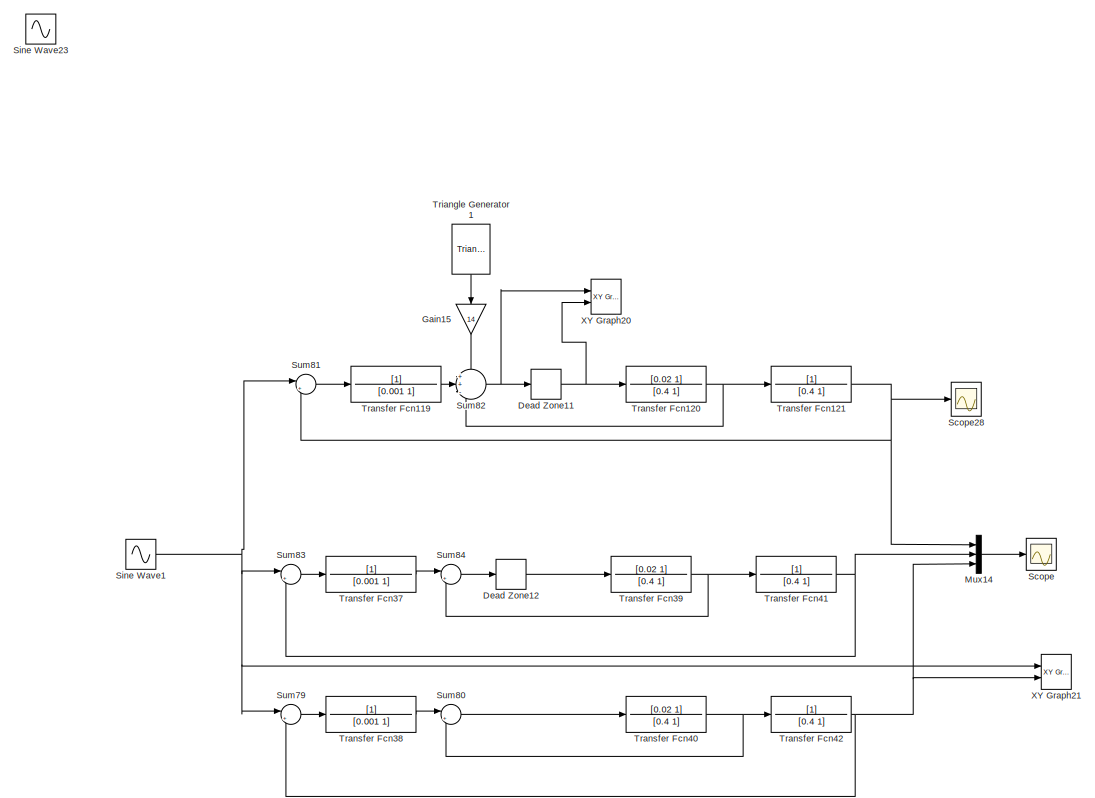
[diagram: root canvas - part 1/9, top left region]
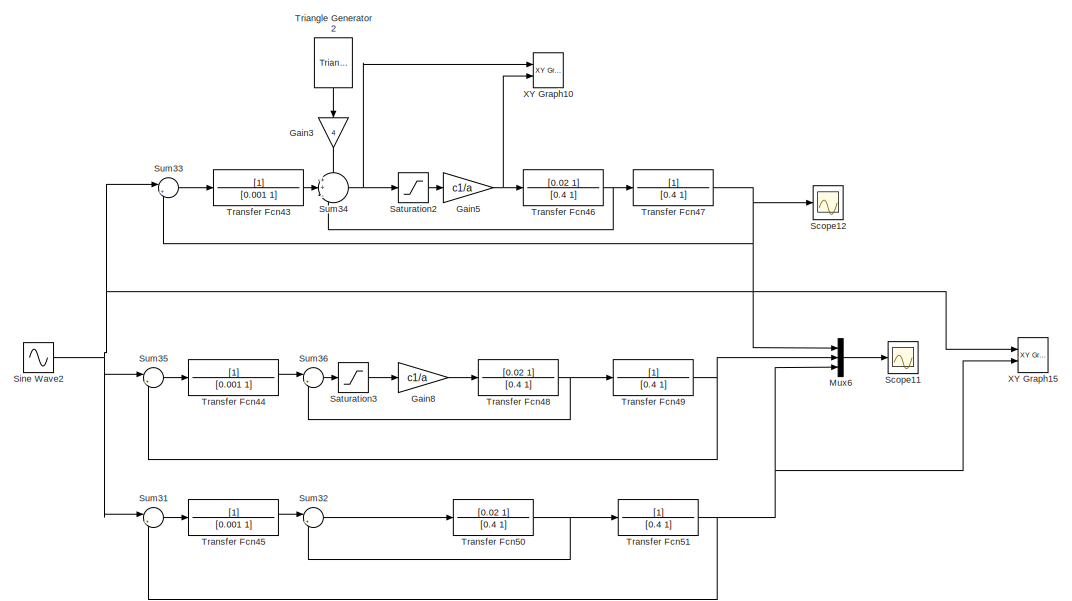
[diagram: root canvas - part 2/9, top center region]
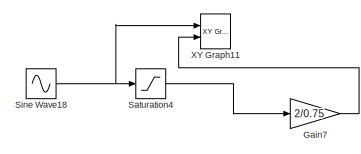
[diagram: root canvas - part 3/9, top right region]
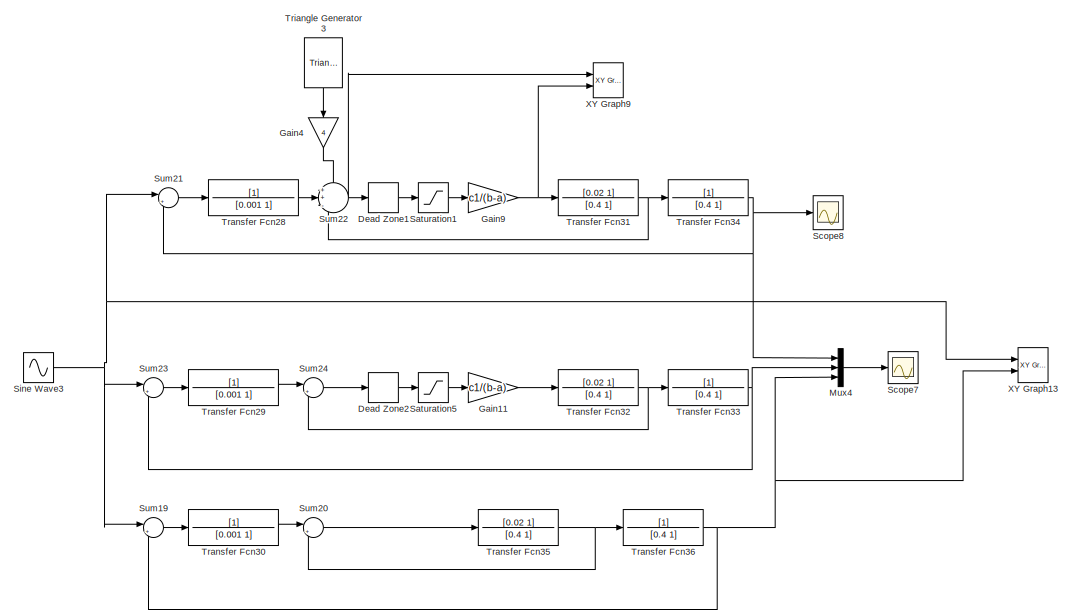
[diagram: root canvas - part 4/9, central region]
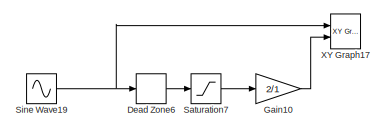
[diagram: root canvas - part 5/9, middle right region]
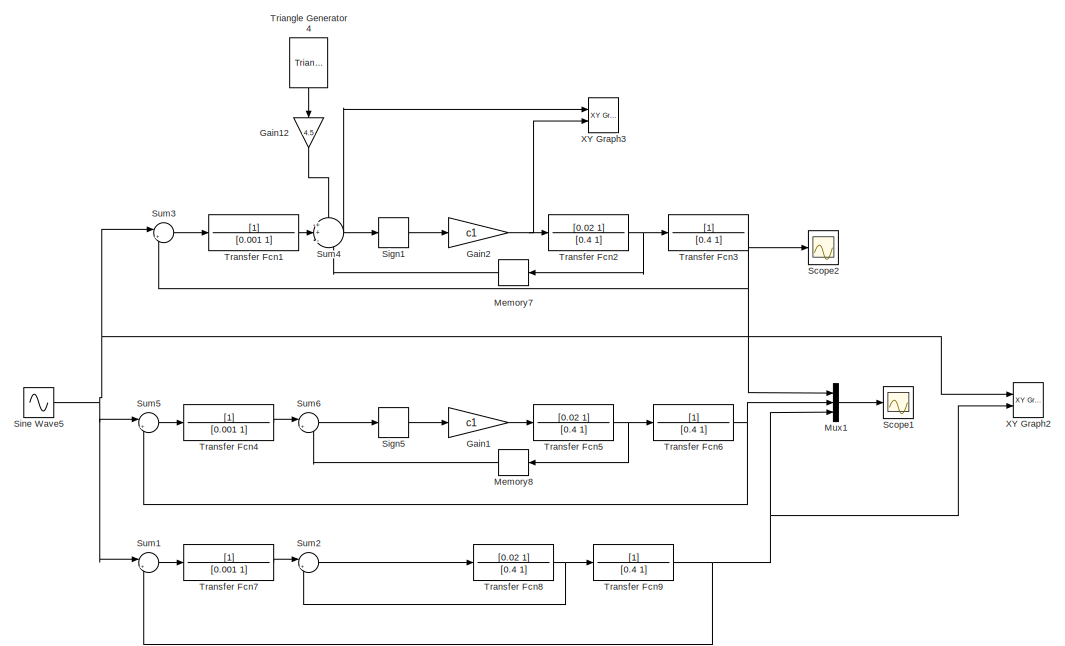
[diagram: root canvas - part 6/9, central region]
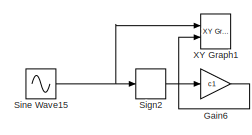
[diagram: root canvas - part 7/9, middle right region]
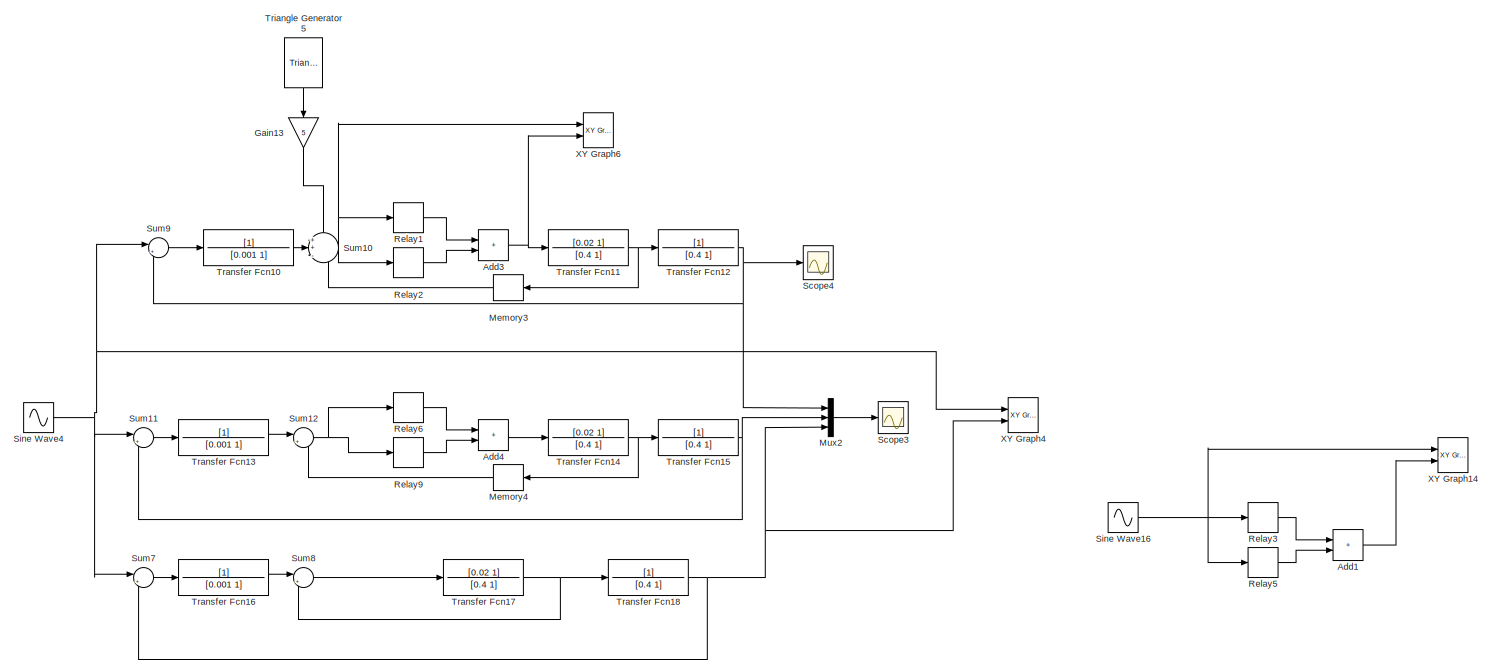
[diagram: root canvas - part 8/9, full width, bottom band]
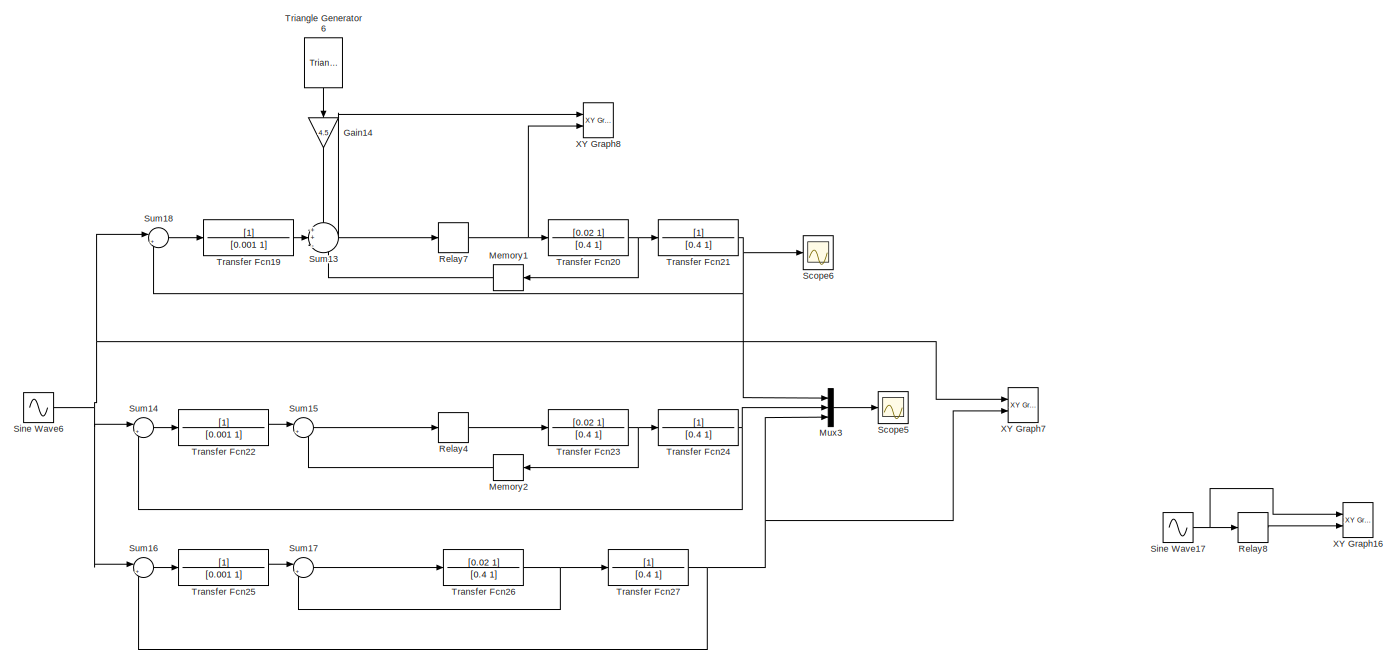
[diagram: root canvas - part 9/9, bottom center region]
MODEL slx_cbd63c91ff4a
KIND model
CONFIG AbsTol = auto
CONFIG EnableMultiTasking = off
CONFIG FixedStep = 1e-4
CONFIG MaxStep = auto
CONFIG MinStep = auto
CONFIG RelTol = 1e-3
CONFIG SampleTimeConstraint = Unconstrained
CONFIG SolverName = VariableStepAuto
CONFIG StartTime = 0.0
CONFIG StopTime = 5
BLOCK [Sum] Add1
  Commented = on
  IconShape = rectangular
  Ports = [2, 1]
BLOCK [Sum] Add3
  IconShape = rectangular
  Ports = [2, 1]
BLOCK [Sum] Add4
  IconShape = rectangular
  Ports = [2, 1]
BLOCK [DeadZone] Dead Zone1
  Commented = on
  LowerValue = -a
  UpperValue = a
BLOCK [DeadZone] Dead Zone11
  Commented = on
  LowerValue = -a
  UpperValue = a
BLOCK [DeadZone] Dead Zone12
  Commented = on
  LowerValue = -a
  UpperValue = a
BLOCK [DeadZone] Dead Zone2
  Commented = on
  LowerValue = -a
  UpperValue = a
BLOCK [DeadZone] Dead Zone6
  Commented = on
  LowerValue = -1
  UpperValue = 1
BLOCK [Gain] Gain1
  Commented = on
  Gain = c1
BLOCK [Gain] Gain10
  Commented = on
  Gain = 2/1
BLOCK [Gain] Gain11
  Commented = on
  Gain = c1/(b-a)
BLOCK [Gain] Gain12
  Commented = on
  Gain = 4.5
  NameLocation = left
BLOCK [Gain] Gain13
  Gain = 5
  NameLocation = left
BLOCK [Gain] Gain14
  Commented = on
  Gain = 4.5
  NameLocation = left
BLOCK [Gain] Gain15
  Commented = on
  Gain = 14
  NameLocation = left
BLOCK [Gain] Gain2
  Commented = on
  Gain = c1
BLOCK [Gain] Gain3
  Commented = on
  Gain = 4
  NameLocation = left
BLOCK [Gain] Gain4
  Commented = on
  Gain = 4
  NameLocation = left
BLOCK [Gain] Gain5
  Commented = on
  Gain = c1/a
BLOCK [Gain] Gain6
  Commented = on
  Gain = c1
BLOCK [Gain] Gain7
  Commented = on
  Gain = 2/0.75
BLOCK [Gain] Gain8
  Commented = on
  Gain = c1/a
BLOCK [Gain] Gain9
  Commented = on
  Gain = c1/(b-a)
BLOCK [Memory] Memory1
  Commented = on
  NameLocation = top
BLOCK [Memory] Memory2
  Commented = on
  NameLocation = top
BLOCK [Memory] Memory3
  NameLocation = top
BLOCK [Memory] Memory4
  NameLocation = top
BLOCK [Memory] Memory7
  Commented = on
  NameLocation = top
BLOCK [Memory] Memory8
  Commented = on
  NameLocation = top
BLOCK [Mux] Mux1
  Commented = on
  DisplayOption = bar
  Inputs = 3
  Ports = [3, 1]
BLOCK [Mux] Mux14
  Commented = on
  DisplayOption = bar
  Inputs = 3
  Ports = [3, 1]
BLOCK [Mux] Mux2
  DisplayOption = bar
  Inputs = 3
  Ports = [3, 1]
BLOCK [Mux] Mux3
  Commented = on
  DisplayOption = bar
  Inputs = 3
  Ports = [3, 1]
BLOCK [Mux] Mux4
  Commented = on
  DisplayOption = bar
  Inputs = 3
  Ports = [3, 1]
BLOCK [Mux] Mux6
  Commented = on
  DisplayOption = bar
  Inputs = 3
  Ports = [3, 1]
BLOCK [Relay] Relay1
  OffSwitchValue = a
  OnOutputValue = c1
  OnSwitchValue = a
BLOCK [Relay] Relay2
  OffOutputValue = -c1
  OffSwitchValue = -a
  OnOutputValue = 0
  OnSwitchValue = -a
BLOCK [Relay] Relay3
  Commented = on
  OffSwitchValue = a
  OnOutputValue = c1
  OnSwitchValue = a
BLOCK [Relay] Relay4
  Commented = on
  OffOutputValue = -c1
  OffSwitchValue = -a
  OnOutputValue = c1
  OnSwitchValue = a
BLOCK [Relay] Relay5
  Commented = on
  OffOutputValue = -c1
  OffSwitchValue = -a
  OnOutputValue = 0
  OnSwitchValue = -a
BLOCK [Relay] Relay6
  OffSwitchValue = a
  OnOutputValue = c1
  OnSwitchValue = a
BLOCK [Relay] Relay7
  Commented = on
  OffOutputValue = -c1
  OffSwitchValue = -a
  OnOutputValue = c1
  OnSwitchValue = a
BLOCK [Relay] Relay8
  Commented = on
  OffOutputValue = -c1
  OffSwitchValue = -a
  OnOutputValue = c1
  OnSwitchValue = a
BLOCK [Relay] Relay9
  OffOutputValue = -c1
  OffSwitchValue = -a
  OnOutputValue = 0
  OnSwitchValue = -a
BLOCK [Saturate] Saturation1
  Commented = on
  LowerLimit = -(b-a)
  UpperLimit = b-a
BLOCK [Saturate] Saturation2
  Commented = on
  LowerLimit = -a
  UpperLimit = a
BLOCK [Saturate] Saturation3
  Commented = on
  LowerLimit = -a
  UpperLimit = a
BLOCK [Saturate] Saturation4
  Commented = on
  LowerLimit = -0.75
  UpperLimit = 0.75
BLOCK [Saturate] Saturation5
  Commented = on
  LowerLimit = -(b-a)
  UpperLimit = b-a
BLOCK [Saturate] Saturation7
  Commented = on
  LowerLimit = -1
  UpperLimit = 1
BLOCK [Scope] Scope
  Commented = on
  Floating = off
  NumInputPorts = 1
  Ports = [1]
  ScopeSpecificationString = Simulink.scopes.TimeScopeBlockCfg('CurrentConfiguration', extmgr.ConfigurationSet(extmgr.Configuration('Core','General UI',true,'FigureColor',[1 1 1]),extmgr.Configuration('Core','Source UI',true),extmgr.Configuration('Sources','WiredSimulink',true,'DataLoggingVariableName','ScopeData1'),extmgr.Configuration('Visuals','Time Domain',true,'SerializedDisplays',{struct('MinYLimReal','-0.0117','MaxYLim...<+1921ch>
BLOCK [Scope] Scope1
  Commented = on
  Floating = off
  NumInputPorts = 1
  Ports = [1]
  ScopeSpecificationString = Simulink.scopes.TimeScopeBlockCfg('CurrentConfiguration', extmgr.ConfigurationSet(extmgr.Configuration('Core','General UI',true,'FigureColor',[1 1 1]),extmgr.Configuration('Core','Source UI',true),extmgr.Configuration('Sources','WiredSimulink',true,'DataLoggingVariableName','ScopeData5'),extmgr.Configuration('Visuals','Time Domain',true,'SerializedDisplays',{struct('MinYLimReal','-0.41903','MaxYLi...<+1925ch>
BLOCK [Scope] Scope11
  Commented = on
  Floating = off
  NumInputPorts = 1
  Ports = [1]
  ScopeSpecificationString = Simulink.scopes.TimeScopeBlockCfg('CurrentConfiguration', extmgr.ConfigurationSet(extmgr.Configuration('Core','General UI',true,'FigureColor',[1 1 1]),extmgr.Configuration('Core','Source UI',true),extmgr.Configuration('Sources','WiredSimulink',true,'DataLoggingVariableName','ScopeData1'),extmgr.Configuration('Visuals','Time Domain',true,'SerializedDisplays',{struct('MinYLimReal','-0.41443','MaxYLi...<+1927ch>
BLOCK [Scope] Scope12
  Commented = on
  Floating = off
  NumInputPorts = 1
  Ports = [1]
  ScopeSpecificationString = Simulink.scopes.TimeScopeBlockCfg('CurrentConfiguration', extmgr.ConfigurationSet(extmgr.Configuration('Core','General UI',true,'FigureColor',[1 1 1]),extmgr.Configuration('Core','Source UI',true),extmgr.Configuration('Sources','WiredSimulink',true,'DataLoggingVariableName','ScopeData2'),extmgr.Configuration('Visuals','Time Domain',true,'SerializedDisplays',{struct('MinYLimReal','-0.23624','MaxYLi...<+1791ch>
BLOCK [Scope] Scope2
  Commented = on
  Floating = off
  NumInputPorts = 1
  Ports = [1]
  ScopeSpecificationString = Simulink.scopes.TimeScopeBlockCfg('CurrentConfiguration', extmgr.ConfigurationSet(extmgr.Configuration('Core','General UI',true,'FigureColor',[1 1 1]),extmgr.Configuration('Core','Source UI',true),extmgr.Configuration('Sources','WiredSimulink',true,'DataLoggingVariableName','ScopeData6'),extmgr.Configuration('Visuals','Time Domain',true,'SerializedDisplays',{struct('MinYLimReal','-0.02192','MaxYLi...<+1795ch>
BLOCK [Scope] Scope28
  Commented = on
  Floating = off
  NumInputPorts = 1
  Ports = [1]
  ScopeSpecificationString = Simulink.scopes.TimeScopeBlockCfg('CurrentConfiguration', extmgr.ConfigurationSet(extmgr.Configuration('Core','General UI',true,'FigureColor',[1 1 1]),extmgr.Configuration('Core','Source UI',true),extmgr.Configuration('Sources','WiredSimulink',true,'DataLoggingVariableName','ScopeData2'),extmgr.Configuration('Visuals','Time Domain',true,'SerializedDisplays',{struct('MinYLimReal','-0.02192','MaxYLi...<+1795ch>
BLOCK [Scope] Scope3
  Floating = off
  NumInputPorts = 1
  Ports = [1]
  ScopeSpecificationString = Simulink.scopes.TimeScopeBlockCfg('CurrentConfiguration', extmgr.ConfigurationSet(extmgr.Configuration('Core','General UI',true,'FigureColor',[1 1 1]),extmgr.Configuration('Core','Source UI',true),extmgr.Configuration('Sources','WiredSimulink',true,'DataLoggingVariableName','ScopeData7'),extmgr.Configuration('Visuals','Time Domain',true,'SerializedDisplays',{struct('MinYLimReal','-0.97299','MaxYLi...<+1970ch>
BLOCK [Scope] Scope4
  Floating = off
  NumInputPorts = 1
  Ports = [1]
  ScopeSpecificationString = Simulink.scopes.TimeScopeBlockCfg('CurrentConfiguration', extmgr.ConfigurationSet(extmgr.Configuration('Core','General UI',true,'FigureColor',[1 1 1]),extmgr.Configuration('Core','Source UI',true),extmgr.Configuration('Sources','WiredSimulink',true,'DataLoggingVariableName','ScopeData8'),extmgr.Configuration('Visuals','Time Domain',true,'SerializedDisplays',{struct('MinYLimReal','-0.19117','MaxYLi...<+1795ch>
BLOCK [Scope] Scope5
  Commented = on
  Floating = off
  NumInputPorts = 1
  Ports = [1]
  ScopeSpecificationString = Simulink.scopes.TimeScopeBlockCfg('CurrentConfiguration', extmgr.ConfigurationSet(extmgr.Configuration('Core','General UI',true,'FigureColor',[1 1 1]),extmgr.Configuration('Core','Source UI',true),extmgr.Configuration('Sources','WiredSimulink',true,'DataLoggingVariableName','ScopeData9'),extmgr.Configuration('Visuals','Time Domain',true,'SerializedDisplays',{struct('MinYLimReal','-0.4166','MaxYLim...<+1942ch>
BLOCK [Scope] Scope6
  Commented = on
  Floating = off
  NumInputPorts = 1
  Ports = [1]
  ScopeSpecificationString = Simulink.scopes.TimeScopeBlockCfg('CurrentConfiguration', extmgr.ConfigurationSet(extmgr.Configuration('Core','General UI',true,'FigureColor',[1 1 1]),extmgr.Configuration('Core','Source UI',true),extmgr.Configuration('Sources','WiredSimulink',true,'DataLoggingVariableName','ScopeData10'),extmgr.Configuration('Visuals','Time Domain',true,'SerializedDisplays',{struct('MinYLimReal','-0.02192','MaxYL...<+1796ch>
BLOCK [Scope] Scope7
  Commented = on
  Floating = off
  NumInputPorts = 1
  Ports = [1]
  ScopeSpecificationString = Simulink.scopes.TimeScopeBlockCfg('CurrentConfiguration', extmgr.ConfigurationSet(extmgr.Configuration('Core','General UI',true,'FigureColor',[1 1 1]),extmgr.Configuration('Core','Source UI',true),extmgr.Configuration('Sources','WiredSimulink',true,'DataLoggingVariableName','ScopeData3'),extmgr.Configuration('Visuals','Time Domain',true,'SerializedDisplays',{struct('MinYLimReal','-0.38026','MaxYLi...<+1923ch>
BLOCK [Scope] Scope8
  Commented = on
  Floating = off
  NumInputPorts = 1
  Ports = [1]
  ScopeSpecificationString = Simulink.scopes.TimeScopeBlockCfg('CurrentConfiguration', extmgr.ConfigurationSet(extmgr.Configuration('Core','General UI',true,'FigureColor',[1 1 1]),extmgr.Configuration('Core','Source UI',true),extmgr.Configuration('Sources','WiredSimulink',true,'DataLoggingVariableName','ScopeData4'),extmgr.Configuration('Visuals','Time Domain',true,'SerializedDisplays',{struct('MinYLimReal','-0.2347','MaxYLim...<+1793ch>
BLOCK [Signum] Sign1
  Commented = on
BLOCK [Signum] Sign2
  Commented = on
BLOCK [Signum] Sign5
  Commented = on
BLOCK [Sin] Sine Wave1
  Amplitude = U
  Commented = on
  Frequency = w
  Ports = [0, 1]
  SampleTime = 0
BLOCK [Sin] Sine Wave15
  Amplitude = 3
  Commented = on
  Frequency = 10
  Ports = [0, 1]
  SampleTime = 0
BLOCK [Sin] Sine Wave16
  Amplitude = 3
  Commented = on
  Phase = 90
  Ports = [0, 1]
  SampleTime = 0
BLOCK [Sin] Sine Wave17
  Amplitude = 10
  Commented = on
  Ports = [0, 1]
  SampleTime = 0
BLOCK [Sin] Sine Wave18
  Amplitude = 3
  Commented = on
  Ports = [0, 1]
  SampleTime = 0
BLOCK [Sin] Sine Wave19
  Amplitude = 5
  Commented = on
  Ports = [0, 1]
  SampleTime = 0
BLOCK [Sin] Sine Wave2
  Amplitude = U
  Commented = on
  Frequency = w
  Ports = [0, 1]
  SampleTime = 0
BLOCK [Sin] Sine Wave23
  Amplitude = 6
  Commented = on
  Frequency = 1000
  NameLocation = left
  Ports = [0, 1]
  SampleTime = 0
BLOCK [Sin] Sine Wave3
  Amplitude = U
  Commented = on
  Frequency = w
  Ports = [0, 1]
  SampleTime = 0
BLOCK [Sin] Sine Wave4
  Amplitude = U
  Frequency = w
  Ports = [0, 1]
  SampleTime = 0
BLOCK [Sin] Sine Wave5
  Amplitude = U
  Commented = on
  Frequency = w
  Ports = [0, 1]
  SampleTime = 0
BLOCK [Sin] Sine Wave6
  Amplitude = U
  Commented = on
  Frequency = w
  Ports = [0, 1]
  SampleTime = 0
BLOCK [Sum] Sum1
  Commented = on
  Inputs = |+-
  Ports = [2, 1]
BLOCK [Sum] Sum10
  Inputs = ++-
  Ports = [3, 1]
BLOCK [Sum] Sum11
  Inputs = |+-
  Ports = [2, 1]
BLOCK [Sum] Sum12
  Inputs = |+-
  Ports = [2, 1]
BLOCK [Sum] Sum13
  Commented = on
  Inputs = ++-
  Ports = [3, 1]
BLOCK [Sum] Sum14
  Commented = on
  Inputs = |+-
  Ports = [2, 1]
BLOCK [Sum] Sum15
  Commented = on
  Inputs = |+-
  Ports = [2, 1]
BLOCK [Sum] Sum16
  Commented = on
  Inputs = |+-
  Ports = [2, 1]
BLOCK [Sum] Sum17
  Commented = on
  Inputs = |+-
  Ports = [2, 1]
BLOCK [Sum] Sum18
  Commented = on
  Inputs = |+-
  Ports = [2, 1]
BLOCK [Sum] Sum19
  Commented = on
  Inputs = |+-
  Ports = [2, 1]
BLOCK [Sum] Sum2
  Commented = on
  Inputs = |+-
  Ports = [2, 1]
BLOCK [Sum] Sum20
  Commented = on
  Inputs = |+-
  Ports = [2, 1]
BLOCK [Sum] Sum21
  Commented = on
  Inputs = |+-
  Ports = [2, 1]
BLOCK [Sum] Sum22
  Commented = on
  Inputs = ++-
  Ports = [3, 1]
BLOCK [Sum] Sum23
  Commented = on
  Inputs = |+-
  Ports = [2, 1]
BLOCK [Sum] Sum24
  Commented = on
  Inputs = |+-
  Ports = [2, 1]
BLOCK [Sum] Sum3
  Commented = on
  Inputs = |+-
  Ports = [2, 1]
BLOCK [Sum] Sum31
  Commented = on
  Inputs = |+-
  Ports = [2, 1]
BLOCK [Sum] Sum32
  Commented = on
  Inputs = |+-
  Ports = [2, 1]
BLOCK [Sum] Sum33
  Commented = on
  Inputs = |+-
  Ports = [2, 1]
BLOCK [Sum] Sum34
  Commented = on
  Inputs = ++-
  Ports = [3, 1]
BLOCK [Sum] Sum35
  Commented = on
  Inputs = |+-
  Ports = [2, 1]
BLOCK [Sum] Sum36
  Commented = on
  Inputs = |+-
  Ports = [2, 1]
BLOCK [Sum] Sum4
  Commented = on
  Inputs = ++-
  Ports = [3, 1]
BLOCK [Sum] Sum5
  Commented = on
  Inputs = |+-
  Ports = [2, 1]
BLOCK [Sum] Sum6
  Commented = on
  Inputs = |+-
  Ports = [2, 1]
BLOCK [Sum] Sum7
  Inputs = |+-
  Ports = [2, 1]
BLOCK [Sum] Sum79
  Commented = on
  Inputs = |+-
  Ports = [2, 1]
BLOCK [Sum] Sum8
  Inputs = |+-
  Ports = [2, 1]
BLOCK [Sum] Sum80
  Commented = on
  Inputs = |+-
  Ports = [2, 1]
BLOCK [Sum] Sum81
  Commented = on
  Inputs = |+-
  Ports = [2, 1]
BLOCK [Sum] Sum82
  Commented = on
  Inputs = ++-
  Ports = [3, 1]
BLOCK [Sum] Sum83
  Commented = on
  Inputs = |+-
  Ports = [2, 1]
BLOCK [Sum] Sum84
  Commented = on
  Inputs = |+-
  Ports = [2, 1]
BLOCK [Sum] Sum9
  Inputs = |+-
  Ports = [2, 1]
BLOCK [TransferFcn] Transfer Fcn1
  Commented = on
  Denominator = [0.001 1]
BLOCK [TransferFcn] Transfer Fcn10
  Denominator = [0.001 1]
BLOCK [TransferFcn] Transfer Fcn11
  Denominator = [0.4 1]
  Numerator = [0.02 1]
BLOCK [TransferFcn] Transfer Fcn119
  Commented = on
  Denominator = [0.001 1]
BLOCK [TransferFcn] Transfer Fcn12
  Denominator = [0.4 1]
BLOCK [TransferFcn] Transfer Fcn120
  Commented = on
  Denominator = [0.4 1]
  Numerator = [0.02 1]
BLOCK [TransferFcn] Transfer Fcn121
  Commented = on
  Denominator = [0.4 1]
BLOCK [TransferFcn] Transfer Fcn13
  Denominator = [0.001 1]
BLOCK [TransferFcn] Transfer Fcn14
  Denominator = [0.4 1]
  Numerator = [0.02 1]
BLOCK [TransferFcn] Transfer Fcn15
  Denominator = [0.4 1]
BLOCK [TransferFcn] Transfer Fcn16
  Denominator = [0.001 1]
BLOCK [TransferFcn] Transfer Fcn17
  Denominator = [0.4 1]
  Numerator = [0.02 1]
BLOCK [TransferFcn] Transfer Fcn18
  Denominator = [0.4 1]
BLOCK [TransferFcn] Transfer Fcn19
  Commented = on
  Denominator = [0.001 1]
BLOCK [TransferFcn] Transfer Fcn2
  Commented = on
  Denominator = [0.4 1]
  Numerator = [0.02 1]
BLOCK [TransferFcn] Transfer Fcn20
  Commented = on
  Denominator = [0.4 1]
  Numerator = [0.02 1]
BLOCK [TransferFcn] Transfer Fcn21
  Commented = on
  Denominator = [0.4 1]
BLOCK [TransferFcn] Transfer Fcn22
  Commented = on
  Denominator = [0.001 1]
BLOCK [TransferFcn] Transfer Fcn23
  Commented = on
  Denominator = [0.4 1]
  Numerator = [0.02 1]
BLOCK [TransferFcn] Transfer Fcn24
  Commented = on
  Denominator = [0.4 1]
BLOCK [TransferFcn] Transfer Fcn25
  Commented = on
  Denominator = [0.001 1]
BLOCK [TransferFcn] Transfer Fcn26
  Commented = on
  Denominator = [0.4 1]
  Numerator = [0.02 1]
BLOCK [TransferFcn] Transfer Fcn27
  Commented = on
  Denominator = [0.4 1]
BLOCK [TransferFcn] Transfer Fcn28
  Commented = on
  Denominator = [0.001 1]
BLOCK [TransferFcn] Transfer Fcn29
  Commented = on
  Denominator = [0.001 1]
BLOCK [TransferFcn] Transfer Fcn3
  Commented = on
  Denominator = [0.4 1]
  NameLocation = left
BLOCK [TransferFcn] Transfer Fcn30
  Commented = on
  Denominator = [0.001 1]
BLOCK [TransferFcn] Transfer Fcn31
  Commented = on
  Denominator = [0.4 1]
  Numerator = [0.02 1]
BLOCK [TransferFcn] Transfer Fcn32
  Commented = on
  Denominator = [0.4 1]
  Numerator = [0.02 1]
BLOCK [TransferFcn] Transfer Fcn33
  Commented = on
  Denominator = [0.4 1]
  NameLocation = left
BLOCK [TransferFcn] Transfer Fcn34
  Commented = on
  Denominator = [0.4 1]
  NameLocation = left
BLOCK [TransferFcn] Transfer Fcn35
  Commented = on
  Denominator = [0.4 1]
  Numerator = [0.02 1]
BLOCK [TransferFcn] Transfer Fcn36
  Commented = on
  Denominator = [0.4 1]
  NameLocation = left
BLOCK [TransferFcn] Transfer Fcn37
  Commented = on
  Denominator = [0.001 1]
BLOCK [TransferFcn] Transfer Fcn38
  Commented = on
  Denominator = [0.001 1]
BLOCK [TransferFcn] Transfer Fcn39
  Commented = on
  Denominator = [0.4 1]
  Numerator = [0.02 1]
BLOCK [TransferFcn] Transfer Fcn4
  Commented = on
  Denominator = [0.001 1]
BLOCK [TransferFcn] Transfer Fcn40
  Commented = on
  Denominator = [0.4 1]
  Numerator = [0.02 1]
BLOCK [TransferFcn] Transfer Fcn41
  Commented = on
  Denominator = [0.4 1]
BLOCK [TransferFcn] Transfer Fcn42
  Commented = on
  Denominator = [0.4 1]
BLOCK [TransferFcn] Transfer Fcn43
  Commented = on
  Denominator = [0.001 1]
BLOCK [TransferFcn] Transfer Fcn44
  Commented = on
  Denominator = [0.001 1]
BLOCK [TransferFcn] Transfer Fcn45
  Commented = on
  Denominator = [0.001 1]
BLOCK [TransferFcn] Transfer Fcn46
  Commented = on
  Denominator = [0.4 1]
  Numerator = [0.02 1]
BLOCK [TransferFcn] Transfer Fcn47
  Commented = on
  Denominator = [0.4 1]
BLOCK [TransferFcn] Transfer Fcn48
  Commented = on
  Denominator = [0.4 1]
  Numerator = [0.02 1]
BLOCK [TransferFcn] Transfer Fcn49
  Commented = on
  Denominator = [0.4 1]
  NameLocation = left
BLOCK [TransferFcn] Transfer Fcn5
  Commented = on
  Denominator = [0.4 1]
  Numerator = [0.02 1]
BLOCK [TransferFcn] Transfer Fcn50
  Commented = on
  Denominator = [0.4 1]
  Numerator = [0.02 1]
BLOCK [TransferFcn] Transfer Fcn51
  Commented = on
  Denominator = [0.4 1]
  NameLocation = left
BLOCK [TransferFcn] Transfer Fcn6
  Commented = on
  Denominator = [0.4 1]
  NameLocation = left
BLOCK [TransferFcn] Transfer Fcn7
  Commented = on
  Denominator = [0.001 1]
BLOCK [TransferFcn] Transfer Fcn8
  Commented = on
  Denominator = [0.4 1]
  Numerator = [0.02 1]
BLOCK [TransferFcn] Transfer Fcn9
  Commented = on
  Denominator = [0.4 1]
  NameLocation = left
BLOCK [Reference] Triangle Generator1  REF=powerlib_meascontrol/Pulse & Signal
Generators/Triangle
Generator
  Commented = on
  NameLocation = left
  Ports = [0, 1]
  SourceBlock = powerlib_meascontrol/Pulse & Signal\nGenerators/Triangle\nGenerator
  SourceProductBaseCode = PS
  SourceType = Triangle Generator
BLOCK [Reference] Triangle Generator2  REF=powerlib_meascontrol/Pulse & Signal
Generators/Triangle
Generator
  Commented = on
  NameLocation = left
  Ports = [0, 1]
  SourceBlock = powerlib_meascontrol/Pulse & Signal\nGenerators/Triangle\nGenerator
  SourceProductBaseCode = PS
  SourceType = Triangle Generator
BLOCK [Reference] Triangle Generator3  REF=powerlib_meascontrol/Pulse & Signal
Generators/Triangle
Generator
  Commented = on
  NameLocation = left
  Ports = [0, 1]
  SourceBlock = powerlib_meascontrol/Pulse & Signal\nGenerators/Triangle\nGenerator
  SourceProductBaseCode = PS
  SourceType = Triangle Generator
BLOCK [Reference] Triangle Generator4  REF=powerlib_meascontrol/Pulse & Signal
Generators/Triangle
Generator
  Commented = on
  NameLocation = left
  Ports = [0, 1]
  SourceBlock = powerlib_meascontrol/Pulse & Signal\nGenerators/Triangle\nGenerator
  SourceProductBaseCode = PS
  SourceType = Triangle Generator
BLOCK [Reference] Triangle Generator5  REF=powerlib_meascontrol/Pulse & Signal
Generators/Triangle
Generator
  NameLocation = left
  Ports = [0, 1]
  SourceBlock = powerlib_meascontrol/Pulse & Signal\nGenerators/Triangle\nGenerator
  SourceProductBaseCode = PS
  SourceType = Triangle Generator
BLOCK [Reference] Triangle Generator6  REF=powerlib_meascontrol/Pulse & Signal
Generators/Triangle
Generator
  Commented = on
  NameLocation = left
  Ports = [0, 1]
  SourceBlock = powerlib_meascontrol/Pulse & Signal\nGenerators/Triangle\nGenerator
  SourceProductBaseCode = PS
  SourceType = Triangle Generator
BLOCK [Reference] XY Graph1  REF=simulink/Sinks/XY Graph
  Commented = on
  Ports = [2]
  SourceBlock = simulink/Sinks/XY Graph
  SourceProductBaseCode = SL
  SourceType = XY scope.
BLOCK [Reference] XY Graph10  REF=simulink/Sinks/XY Graph
  Commented = on
  Ports = [2]
  SourceBlock = simulink/Sinks/XY Graph
  SourceProductBaseCode = SL
  SourceType = XY scope.
BLOCK [Reference] XY Graph11  REF=simulink/Sinks/XY Graph
  Commented = on
  Ports = [2]
  SourceBlock = simulink/Sinks/XY Graph
  SourceProductBaseCode = SL
  SourceType = XY scope.
BLOCK [Reference] XY Graph13  REF=simulink/Sinks/XY Graph
  Commented = on
  Ports = [2]
  SourceBlock = simulink/Sinks/XY Graph
  SourceProductBaseCode = SL
  SourceType = XY scope.
BLOCK [Reference] XY Graph14  REF=simulink/Sinks/XY Graph
  Commented = on
  Ports = [2]
  SourceBlock = simulink/Sinks/XY Graph
  SourceProductBaseCode = SL
  SourceType = XY scope.
BLOCK [Reference] XY Graph15  REF=simulink/Sinks/XY Graph
  Commented = on
  Ports = [2]
  SourceBlock = simulink/Sinks/XY Graph
  SourceProductBaseCode = SL
  SourceType = XY scope.
BLOCK [Reference] XY Graph16  REF=simulink/Sinks/XY Graph
  Commented = on
  Ports = [2]
  SourceBlock = simulink/Sinks/XY Graph
  SourceProductBaseCode = SL
  SourceType = XY scope.
BLOCK [Reference] XY Graph17  REF=simulink/Sinks/XY Graph
  Commented = on
  Ports = [2]
  SourceBlock = simulink/Sinks/XY Graph
  SourceProductBaseCode = SL
  SourceType = XY scope.
BLOCK [Reference] XY Graph2  REF=simulink/Sinks/XY Graph
  Commented = on
  Ports = [2]
  SourceBlock = simulink/Sinks/XY Graph
  SourceProductBaseCode = SL
  SourceType = XY scope.
BLOCK [Reference] XY Graph20  REF=simulink/Sinks/XY Graph
  Commented = on
  Ports = [2]
  SourceBlock = simulink/Sinks/XY Graph
  SourceProductBaseCode = SL
  SourceType = XY scope.
BLOCK [Reference] XY Graph21  REF=simulink/Sinks/XY Graph
  Commented = on
  Ports = [2]
  SourceBlock = simulink/Sinks/XY Graph
  SourceProductBaseCode = SL
  SourceType = XY scope.
BLOCK [Reference] XY Graph3  REF=simulink/Sinks/XY Graph
  Commented = on
  Ports = [2]
  SourceBlock = simulink/Sinks/XY Graph
  SourceProductBaseCode = SL
  SourceType = XY scope.
BLOCK [Reference] XY Graph4  REF=simulink/Sinks/XY Graph
  Commented = on
  Ports = [2]
  SourceBlock = simulink/Sinks/XY Graph
  SourceProductBaseCode = SL
  SourceType = XY scope.
BLOCK [Reference] XY Graph6  REF=simulink/Sinks/XY Graph
  Commented = on
  Ports = [2]
  SourceBlock = simulink/Sinks/XY Graph
  SourceProductBaseCode = SL
  SourceType = XY scope.
BLOCK [Reference] XY Graph7  REF=simulink/Sinks/XY Graph
  Commented = on
  Ports = [2]
  SourceBlock = simulink/Sinks/XY Graph
  SourceProductBaseCode = SL
  SourceType = XY scope.
BLOCK [Reference] XY Graph8  REF=simulink/Sinks/XY Graph
  Commented = on
  Ports = [2]
  SourceBlock = simulink/Sinks/XY Graph
  SourceProductBaseCode = SL
  SourceType = XY scope.
BLOCK [Reference] XY Graph9  REF=simulink/Sinks/XY Graph
  Commented = on
  Ports = [2]
  SourceBlock = simulink/Sinks/XY Graph
  SourceProductBaseCode = SL
  SourceType = XY scope.
LINE Add1:1 -> XY Graph14:2
NET Add3:1 -> Transfer Fcn11:1, XY Graph6:2
LINE Add4:1 -> Transfer Fcn14:1
NET Dead Zone11:1 -> Transfer Fcn120:1, XY Graph20:2
LINE Dead Zone12:1 -> Transfer Fcn39:1
LINE Dead Zone1:1 -> Saturation1:1
LINE Dead Zone2:1 -> Saturation5:1
LINE Dead Zone6:1 -> Saturation7:1
LINE Gain10:1 -> XY Graph17:2
LINE Gain11:1 -> Transfer Fcn32:1
LINE Gain12:1 -> Sum4:1
LINE Gain13:1 -> Sum10:1
LINE Gain14:1 -> Sum13:1
LINE Gain15:1 -> Sum82:1
LINE Gain1:1 -> Transfer Fcn5:1
NET Gain2:1 -> Transfer Fcn2:1, XY Graph3:2
LINE Gain3:1 -> Sum34:1
LINE Gain4:1 -> Sum22:1
NET Gain5:1 -> Transfer Fcn46:1, XY Graph10:2
LINE Gain6:1 -> XY Graph1:2
LINE Gain7:1 -> XY Graph11:2
LINE Gain8:1 -> Transfer Fcn48:1
NET Gain9:1 -> Transfer Fcn31:1, XY Graph9:2
LINE Memory1:1 -> Sum13:3
LINE Memory2:1 -> Sum15:2
LINE Memory3:1 -> Sum10:3
LINE Memory4:1 -> Sum12:2
LINE Memory7:1 -> Sum4:3
LINE Memory8:1 -> Sum6:2
LINE Mux14:1 -> Scope:1
LINE Mux1:1 -> Scope1:1
LINE Mux2:1 -> Scope3:1
LINE Mux3:1 -> Scope5:1
LINE Mux4:1 -> Scope7:1
LINE Mux6:1 -> Scope11:1
LINE Relay1:1 -> Add3:1
LINE Relay2:1 -> Add3:2
LINE Relay3:1 -> Add1:1
LINE Relay4:1 -> Transfer Fcn23:1
LINE Relay5:1 -> Add1:2
LINE Relay6:1 -> Add4:1
NET Relay7:1 -> Transfer Fcn20:1, XY Graph8:2
LINE Relay8:1 -> XY Graph16:2
LINE Relay9:1 -> Add4:2
LINE Saturation1:1 -> Gain9:1
LINE Saturation2:1 -> Gain5:1
LINE Saturation3:1 -> Gain8:1
LINE Saturation4:1 -> Gain7:1
LINE Saturation5:1 -> Gain11:1
LINE Saturation7:1 -> Gain10:1
LINE Sign1:1 -> Gain2:1
LINE Sign2:1 -> Gain6:1
LINE Sign5:1 -> Gain1:1
NET Sine Wave15:1 -> Sign2:1, XY Graph1:1
NET Sine Wave16:1 -> Relay3:1, Relay5:1, XY Graph14:1
NET Sine Wave17:1 -> Relay8:1, XY Graph16:1
NET Sine Wave18:1 -> Saturation4:1, XY Graph11:1
NET Sine Wave19:1 -> Dead Zone6:1, XY Graph17:1
NET Sine Wave1:1 -> Sum79:1, Sum81:1, Sum83:1, XY Graph21:1
NET Sine Wave2:1 -> Sum31:1, Sum33:1, Sum35:1, XY Graph15:1
NET Sine Wave3:1 -> Sum19:1, Sum21:1, Sum23:1, XY Graph13:1
NET Sine Wave4:1 -> Sum11:1, Sum7:1, Sum9:1, XY Graph4:1
NET Sine Wave5:1 -> Sum1:1, Sum3:1, Sum5:1, XY Graph2:1
NET Sine Wave6:1 -> Sum14:1, Sum16:1, Sum18:1, XY Graph7:1
NET Sum10:1 -> Relay1:1, Relay2:1, XY Graph6:1
LINE Sum11:1 -> Transfer Fcn13:1
NET Sum12:1 -> Relay6:1, Relay9:1
NET Sum13:1 -> Relay7:1, XY Graph8:1
LINE Sum14:1 -> Transfer Fcn22:1
LINE Sum15:1 -> Relay4:1
LINE Sum16:1 -> Transfer Fcn25:1
LINE Sum17:1 -> Transfer Fcn26:1
LINE Sum18:1 -> Transfer Fcn19:1
LINE Sum19:1 -> Transfer Fcn30:1
LINE Sum1:1 -> Transfer Fcn7:1
LINE Sum20:1 -> Transfer Fcn35:1
LINE Sum21:1 -> Transfer Fcn28:1
NET Sum22:1 -> Dead Zone1:1, XY Graph9:1
LINE Sum23:1 -> Transfer Fcn29:1
LINE Sum24:1 -> Dead Zone2:1
LINE Sum2:1 -> Transfer Fcn8:1
LINE Sum31:1 -> Transfer Fcn45:1
LINE Sum32:1 -> Transfer Fcn50:1
LINE Sum33:1 -> Transfer Fcn43:1
NET Sum34:1 -> Saturation2:1, XY Graph10:1
LINE Sum35:1 -> Transfer Fcn44:1
LINE Sum36:1 -> Saturation3:1
LINE Sum3:1 -> Transfer Fcn1:1
NET Sum4:1 -> Sign1:1, XY Graph3:1
LINE Sum5:1 -> Transfer Fcn4:1
LINE Sum6:1 -> Sign5:1
LINE Sum79:1 -> Transfer Fcn38:1
LINE Sum7:1 -> Transfer Fcn16:1
LINE Sum80:1 -> Transfer Fcn40:1
LINE Sum81:1 -> Transfer Fcn119:1
NET Sum82:1 -> Dead Zone11:1, XY Graph20:1
LINE Sum83:1 -> Transfer Fcn37:1
LINE Sum84:1 -> Dead Zone12:1
LINE Sum8:1 -> Transfer Fcn17:1
LINE Sum9:1 -> Transfer Fcn10:1
LINE Transfer Fcn10:1 -> Sum10:2
LINE Transfer Fcn119:1 -> Sum82:2
NET Transfer Fcn11:1 -> Memory3:1, Transfer Fcn12:1
NET Transfer Fcn120:1 -> Sum82:3, Transfer Fcn121:1
NET Transfer Fcn121:1 -> Mux14:1, Scope28:1, Sum81:2
NET Transfer Fcn12:1 -> Mux2:1, Scope4:1, Sum9:2
LINE Transfer Fcn13:1 -> Sum12:1
NET Transfer Fcn14:1 -> Memory4:1, Transfer Fcn15:1
NET Transfer Fcn15:1 -> Mux2:2, Sum11:2
LINE Transfer Fcn16:1 -> Sum8:1
NET Transfer Fcn17:1 -> Sum8:2, Transfer Fcn18:1
NET Transfer Fcn18:1 -> Mux2:3, Sum7:2, XY Graph4:2
LINE Transfer Fcn19:1 -> Sum13:2
LINE Transfer Fcn1:1 -> Sum4:2
NET Transfer Fcn20:1 -> Memory1:1, Transfer Fcn21:1
NET Transfer Fcn21:1 -> Mux3:1, Scope6:1, Sum18:2
LINE Transfer Fcn22:1 -> Sum15:1
NET Transfer Fcn23:1 -> Memory2:1, Transfer Fcn24:1
NET Transfer Fcn24:1 -> Mux3:2, Sum14:2
LINE Transfer Fcn25:1 -> Sum17:1
NET Transfer Fcn26:1 -> Sum17:2, Transfer Fcn27:1
NET Transfer Fcn27:1 -> Mux3:3, Sum16:2, XY Graph7:2
LINE Transfer Fcn28:1 -> Sum22:2
LINE Transfer Fcn29:1 -> Sum24:1
NET Transfer Fcn2:1 -> Memory7:1, Transfer Fcn3:1
LINE Transfer Fcn30:1 -> Sum20:1
NET Transfer Fcn31:1 -> Sum22:3, Transfer Fcn34:1
NET Transfer Fcn32:1 -> Sum24:2, Transfer Fcn33:1
NET Transfer Fcn33:1 -> Mux4:2, Sum23:2
NET Transfer Fcn34:1 -> Mux4:1, Scope8:1, Sum21:2
NET Transfer Fcn35:1 -> Sum20:2, Transfer Fcn36:1
NET Transfer Fcn36:1 -> Mux4:3, Sum19:2, XY Graph13:2
LINE Transfer Fcn37:1 -> Sum84:1
LINE Transfer Fcn38:1 -> Sum80:1
NET Transfer Fcn39:1 -> Sum84:2, Transfer Fcn41:1
NET Transfer Fcn3:1 -> Mux1:1, Scope2:1, Sum3:2
NET Transfer Fcn40:1 -> Sum80:2, Transfer Fcn42:1
NET Transfer Fcn41:1 -> Mux14:2, Sum83:2
NET Transfer Fcn42:1 -> Mux14:3, Sum79:2, XY Graph21:2
LINE Transfer Fcn43:1 -> Sum34:2
LINE Transfer Fcn44:1 -> Sum36:1
LINE Transfer Fcn45:1 -> Sum32:1
NET Transfer Fcn46:1 -> Sum34:3, Transfer Fcn47:1
NET Transfer Fcn47:1 -> Mux6:1, Scope12:1, Sum33:2
NET Transfer Fcn48:1 -> Sum36:2, Transfer Fcn49:1
NET Transfer Fcn49:1 -> Mux6:2, Sum35:2
LINE Transfer Fcn4:1 -> Sum6:1
NET Transfer Fcn50:1 -> Sum32:2, Transfer Fcn51:1
NET Transfer Fcn51:1 -> Mux6:3, Sum31:2, XY Graph15:2
NET Transfer Fcn5:1 -> Memory8:1, Transfer Fcn6:1
NET Transfer Fcn6:1 -> Mux1:2, Sum5:2
LINE Transfer Fcn7:1 -> Sum2:1
NET Transfer Fcn8:1 -> Sum2:2, Transfer Fcn9:1
NET Transfer Fcn9:1 -> Mux1:3, Sum1:2, XY Graph2:2
LINE Triangle Generator1:1 -> Gain15:1
LINE Triangle Generator2:1 -> Gain3:1
LINE Triangle Generator3:1 -> Gain4:1
LINE Triangle Generator4:1 -> Gain12:1
LINE Triangle Generator5:1 -> Gain13:1
LINE Triangle Generator6:1 -> Gain14:1
note: NET lines group one-source signal fan-out (src -> all destinations, sorted); 1:1 wires keep LINE
